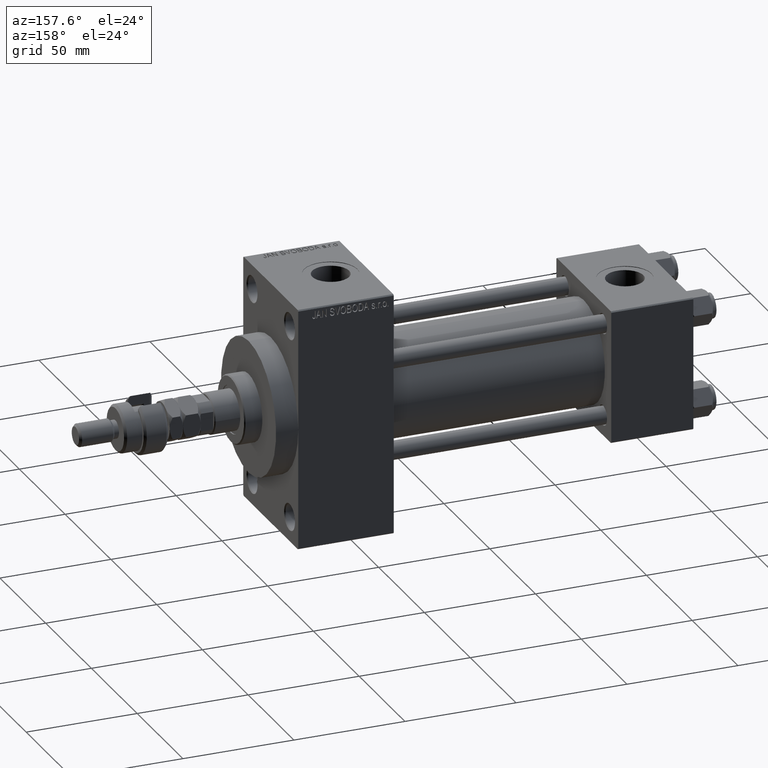
[diagram: clean part render]
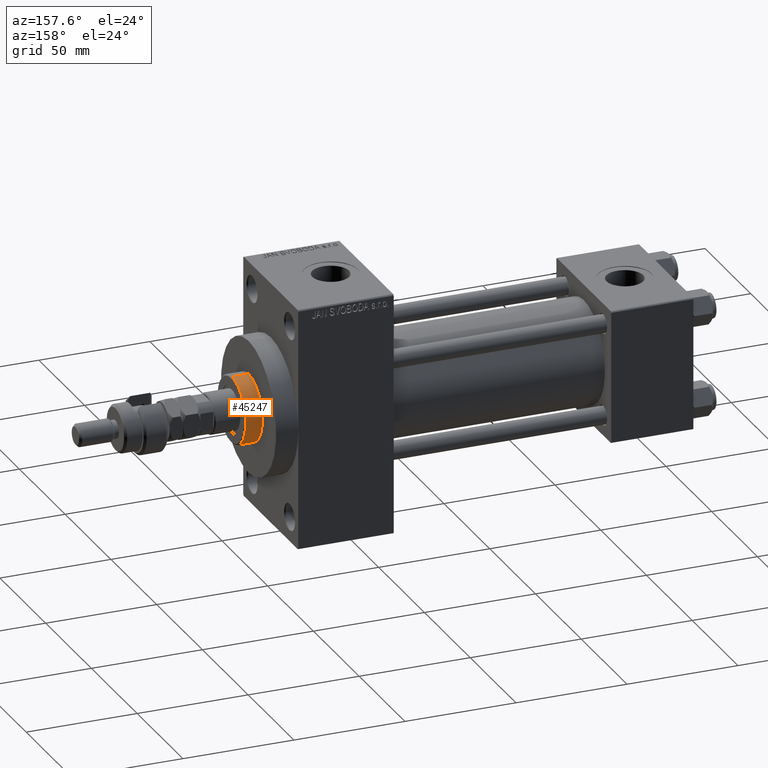
[diagram: same view with one face highlighted and labeled with its STEP entity id]
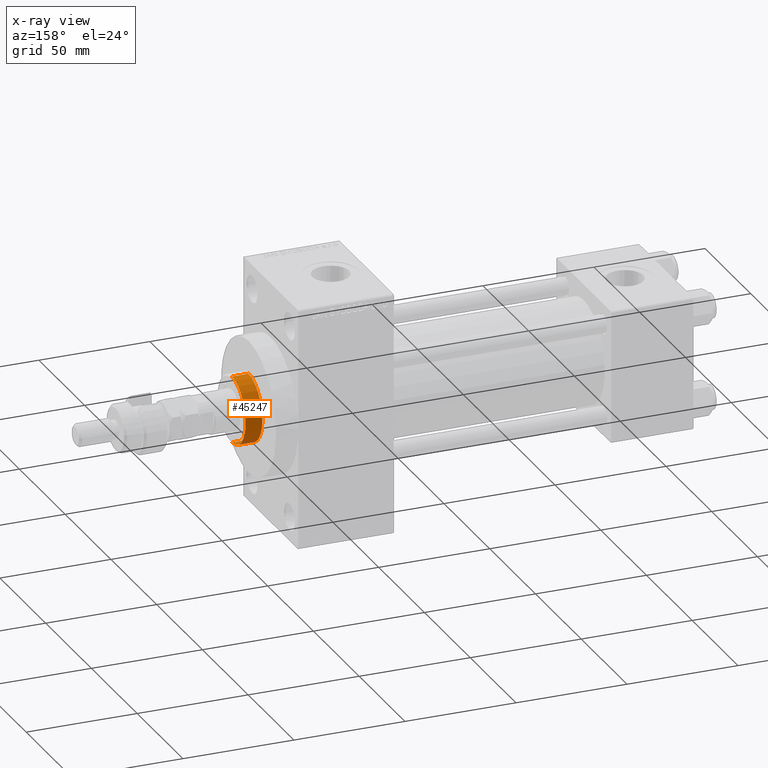
[diagram: x-ray of the same camera — body ghosted, the highlighted face saturated]
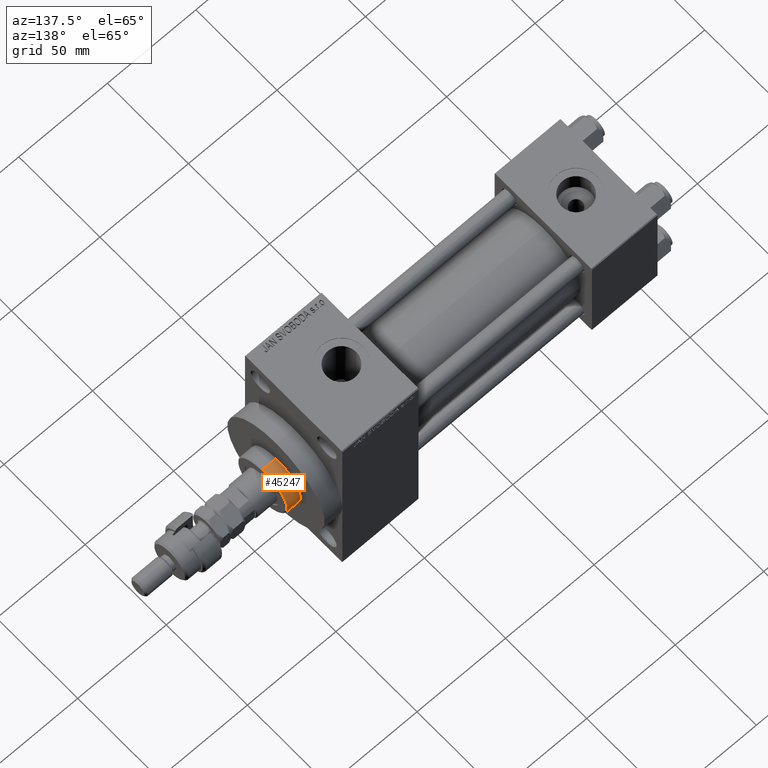
[diagram: same view with one face highlighted and labeled with its STEP entity id]
A machine part, auxiliary view. The second image highlights one B-rep face of the part: STEP entity #45247.
The next image is the same camera in x-ray: the body ghosted, the highlighted face saturated — about 0% of this face is hidden behind the body in this view.
A second angle (auxiliary view) of the same face is appended — the face is thin or edge-on in the first view.
In plain terms, the highlighted cylindrical surface (edge-blend (fillet) strip) has radius 15 mm, axis along (-1, 0, 0).
Its self-contained STEP definition (entity closure, byte-faithful):
#2397 = DIRECTION ( 'NONE',  ( 0.000000000000000000, 0.000000000000000000, 1.000000000000000000 ) ) ;
#4804 = CARTESIAN_POINT ( 'NONE',  ( -15.00000000000000000, 0.000000000000000000, 51.25999999999999801 ) ) ;
#7442 = CARTESIAN_POINT ( 'NONE',  ( -15.00000000000000000, 0.000000000000000000, 50.75999999999998380 ) ) ;
#8965 = AXIS2_PLACEMENT_3D ( 'NONE', #36799, #2397, #36311 ) ;
#10652 = ORIENTED_EDGE ( 'NONE', *, *, #18865, .T. ) ;
#11018 = CIRCLE ( 'NONE', #40902, 15.00000000000000000 ) ;
#11186 = DIRECTION ( 'NONE',  ( -1.000000000000000000, 0.000000000000000000, 0.000000000000000000 ) ) ;
#12159 = LINE ( 'NONE', #4804, #30187 ) ;
#12410 = DIRECTION ( 'NONE',  ( -0.000000000000000000, -0.000000000000000000, -1.000000000000000000 ) ) ;
#13812 = DIRECTION ( 'NONE',  ( -0.000000000000000000, -0.000000000000000000, -1.000000000000000000 ) ) ;
#18285 = CYLINDRICAL_SURFACE ( 'NONE', #34838, 15.00000000000000000 ) ;
#18865 = EDGE_CURVE ( 'NONE', #22197, #40574, #12159, .T. ) ;
#20938 = DIRECTION ( 'NONE',  ( 1.000000000000000000, 0.000000000000000000, 0.000000000000000000 ) ) ;
#21014 = ORIENTED_EDGE ( 'NONE', *, *, #35189, .T. ) ;
#22197 = VERTEX_POINT ( 'NONE', #7442 ) ;
#22565 = DIRECTION ( 'NONE',  ( -0.000000000000000000, -0.000000000000000000, -1.000000000000000000 ) ) ;
#24722 = DIRECTION ( 'NONE',  ( 0.000000000000000000, 0.000000000000000000, -1.000000000000000000 ) ) ;
#26175 = LINE ( 'NONE', #48706, #44239 ) ;
#30187 = VECTOR ( 'NONE', #12410, 1000.000000000000000 ) ;
#32803 = CARTESIAN_POINT ( 'NONE',  ( 0.000000000000000000, 0.000000000000000000, 50.75999999999998380 ) ) ;
#33644 = ORIENTED_EDGE ( 'NONE', *, *, #37102, .F. ) ;
#34838 = AXIS2_PLACEMENT_3D ( 'NONE', #45339, #22565, #11186 ) ;
#35024 = VERTEX_POINT ( 'NONE', #46048 ) ;
#35189 = EDGE_CURVE ( 'NONE', #46728, #22197, #11018, .T. ) ;
#36311 = DIRECTION ( 'NONE',  ( 1.000000000000000000, 0.000000000000000000, 0.000000000000000000 ) ) ;
#36799 = CARTESIAN_POINT ( 'NONE',  ( 0.000000000000000000, 0.000000000000000000, 43.25999999999999801 ) ) ;
#37102 = EDGE_CURVE ( 'NONE', #46728, #35024, #26175, .T. ) ;
#38435 = CARTESIAN_POINT ( 'NONE',  ( 15.00000000000000000, 1.836970198721029589E-15, 50.75999999999998380 ) ) ;
#40574 = VERTEX_POINT ( 'NONE', #46239 ) ;
#40902 = AXIS2_PLACEMENT_3D ( 'NONE', #32803, #24722, #20938 ) ;
#43710 = EDGE_CURVE ( 'NONE', #40574, #35024, #47713, .T. ) ;
#44239 = VECTOR ( 'NONE', #13812, 1000.000000000000000 ) ;
#44650 = EDGE_LOOP ( 'NONE', ( #33644, #21014, #10652, #45272 ) ) ;
#45247 = ADVANCED_FACE ( 'NONE', ( #45828 ), #18285, .T. ) ;
#45272 = ORIENTED_EDGE ( 'NONE', *, *, #43710, .T. ) ;
#45339 = CARTESIAN_POINT ( 'NONE',  ( 0.000000000000000000, 0.000000000000000000, 51.25999999999999801 ) ) ;
#45828 = FACE_OUTER_BOUND ( 'NONE', #44650, .T. ) ;
#46048 = CARTESIAN_POINT ( 'NONE',  ( 15.00000000000000000, 1.836970198721029589E-15, 43.25999999999999801 ) ) ;
#46239 = CARTESIAN_POINT ( 'NONE',  ( -15.00000000000000000, 0.000000000000000000, 43.25999999999999801 ) ) ;
#46728 = VERTEX_POINT ( 'NONE', #38435 ) ;
#47713 = CIRCLE ( 'NONE', #8965, 15.00000000000000000 ) ;
#48706 = CARTESIAN_POINT ( 'NONE',  ( 15.00000000000000000, 1.836970198721029589E-15, 51.25999999999999801 ) ) ;